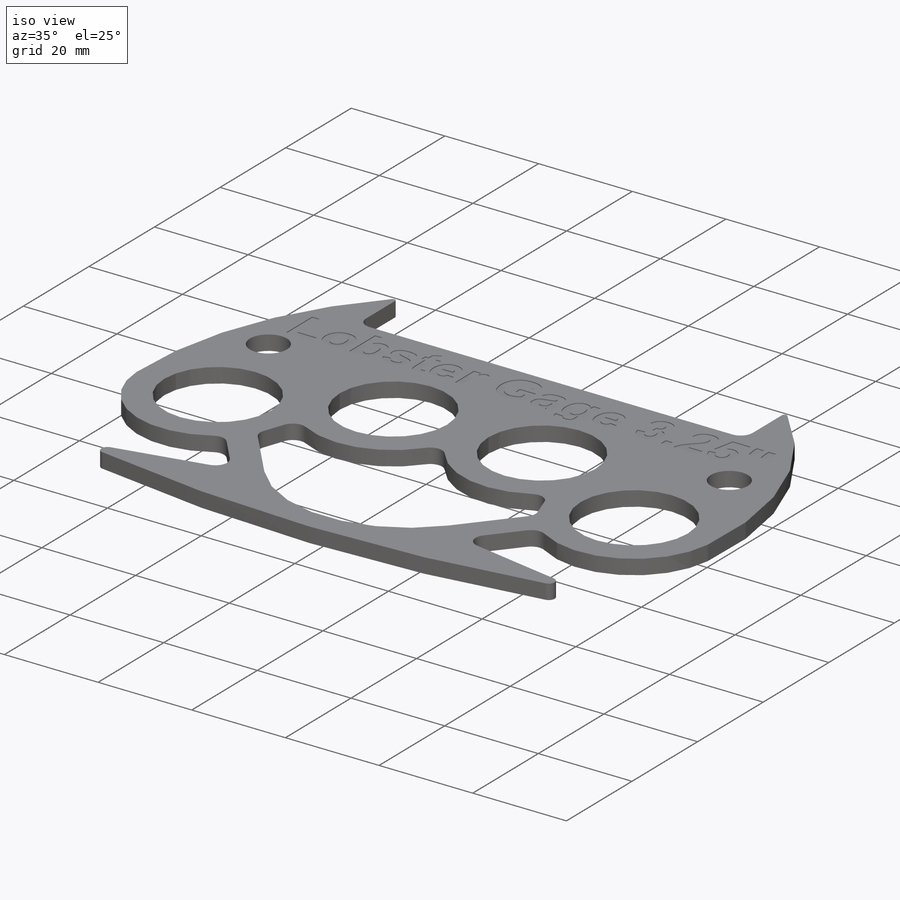
[diagram: iso view]
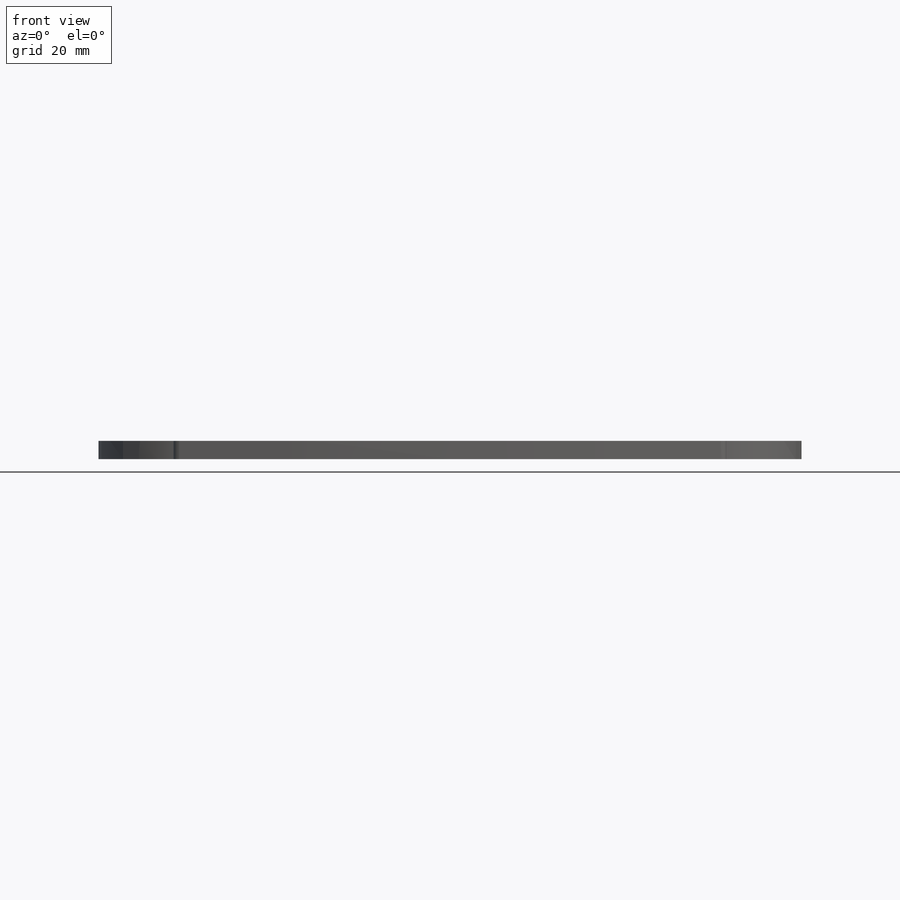
[diagram: front view]
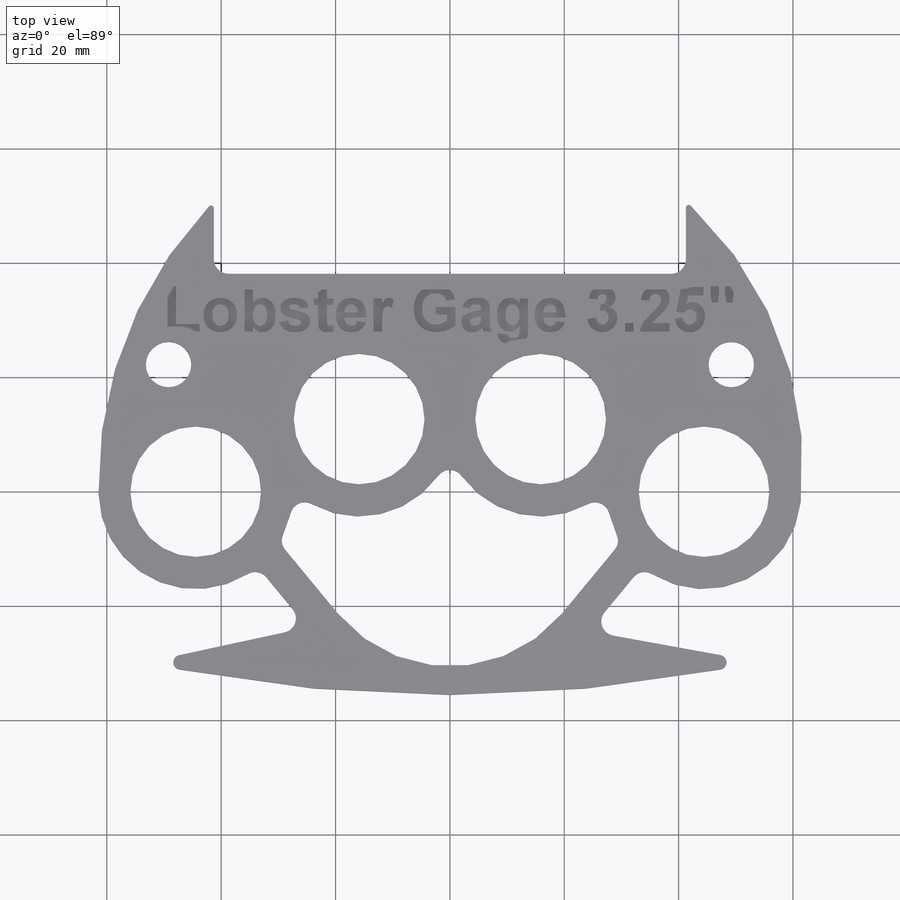
[diagram: top view]
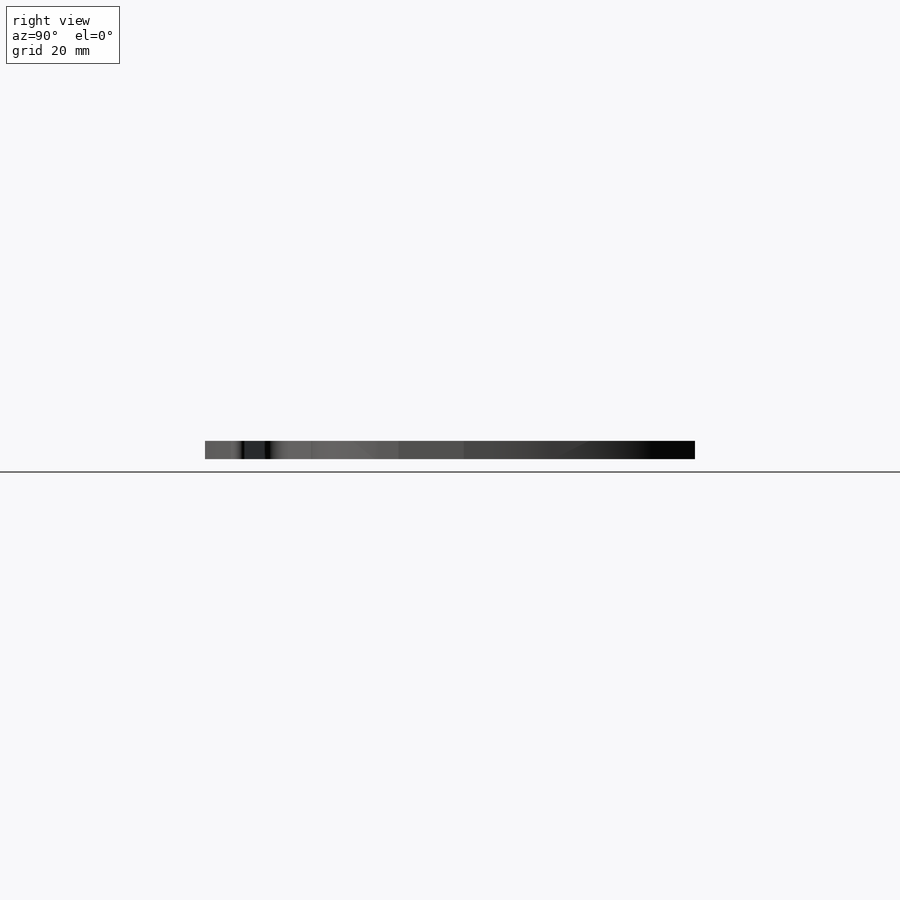
[diagram: right view]
SOLIDWORKS PART (.sldprt)
format: sldprt  version: not decoded by parser v0  size: 656,896 bytes
history: native  units: mm
features: sketch x3, cut_extrude x2, material x1, extrude x1, fillet x1 (+12 scaffold rows collapsed)
feature tree (20):
  scaffold x12  (default folders/planes/origin — collapsed)
  material  "Brass"
  sketch  "Sketch1"  dims[c1.D1=22.86mm c1.D5=25.4mm c1.D9=18.288mm c1.D15=254.0mm c1.D17=25.4mm c1.D4=25.4mm c1.D7=~70.691716mm c1.D8=~62.416874mm c1.D10=254.0mm c1.D13=7.9375mm c1.D20=18.288mm c1.D21=1.27mm c1.D22=2.54mm c1.D2=88.9mm c1.D3=31.75mm c2.D4=12.7mm c2.D5=5.588mm c2.D6=12.7mm c3.D6=~132.075022deg c4.D6=8.128mm c4.D5=~17.109722mm c4.D7=~15.161846mm c4.D8=12.7mm c5.D8=132.0deg c5.D9=5.588mm c5.D10=~18.301294mm c5.D11=~16.287384mm c5.D12=~31.016295mm c5.D13=7.747mm c6.D13=~126.743178deg c6.D14=218.44mm c6.D16=5.588mm c6.D18=82.55mm c6.D19=12.7mm c6.D2=88.9mm c6.D3=12.7mm c6.D4=28.575mm c6.D5=25.4mm c6.D6=5.588mm c6.D10=~13.782456mm c6.D11=15.875mm c6.D12=98.425mm c7.D13=8.89mm c7.D20=5.588mm c7.D23=~47.108809mm c7.D24=~47.10684mm c7.D5=5.588mm]
  extrude  "Boss-Extrude1"  Depth=3.175mm
  fillet  "Fillet3"  Radius=0.508mm
  sketch  "Sketch2"  dims[D1=10.795mm]
  cut_extrude  "Cut-Extrude1"  Depth=0.508mm
  sketch  "Sketch3"  dims[D1=101.6mm D2=10.16mm]
  cut_extrude  "Cut-Extrude2"  Depth=0.1778mm
decode coverage: 7 of 7 modeling features carry decoded parameters
note: ~ marks probable driven/reference dimensions
note: suppression state not decoded; provenance and decode notes live in map.json
